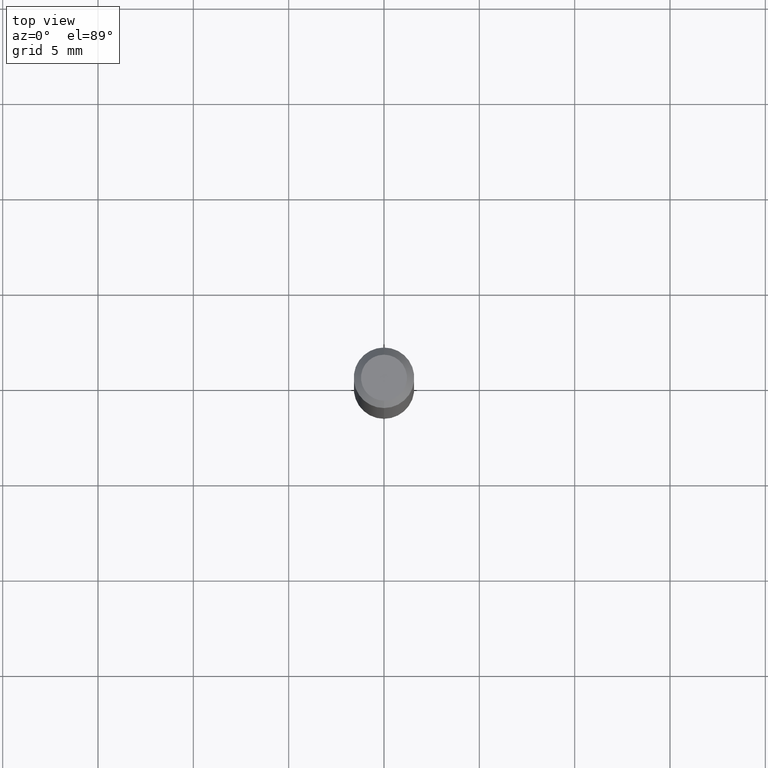
[diagram: clean part render]
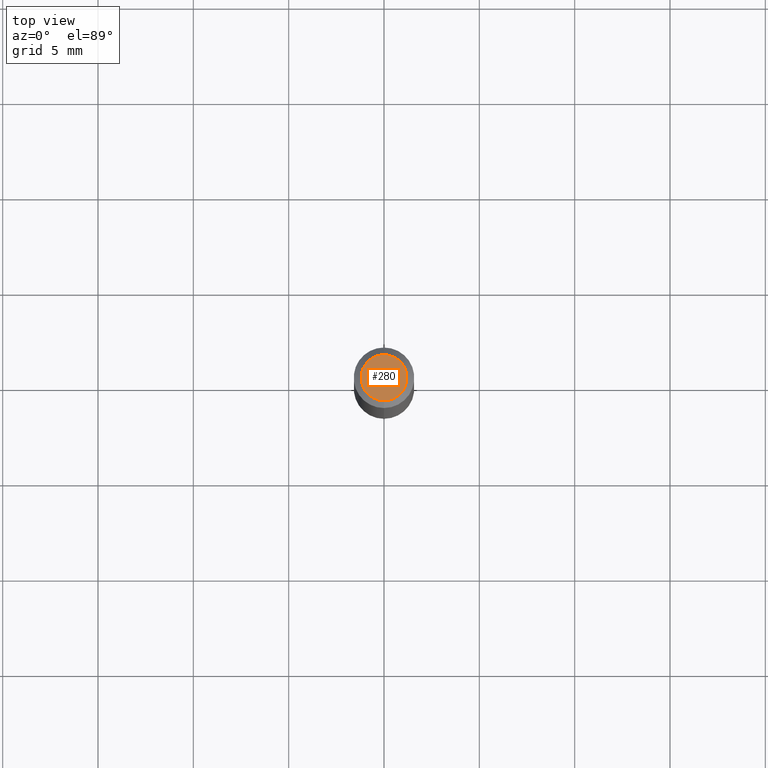
[diagram: same view with one face highlighted and labeled with its STEP entity id]
A machine part, top view. The second image highlights one B-rep face of the part: STEP entity #280.
In plain terms, the highlighted planar face has unit normal (0, -0, -1).
Its self-contained STEP definition (entity closure, byte-faithful):
#26 = CARTESIAN_POINT ( 'NONE',  ( 1.601803669959520186E-45, -2.286938290152406368E-31, -6.550069990919144939E-17 ) ) ;
#28 = ORIENTED_EDGE ( 'NONE', *, *, #148, .T. ) ;
#29 = DIRECTION ( 'NONE',  ( -6.982962677686266711E-15, -1.000000000000000000, 3.491471531331667056E-15 ) ) ;
#54 = DIRECTION ( 'NONE',  ( -2.445475654733798440E-29, 3.491471531331666661E-15, 1.000000000000000000 ) ) ;
#66 = CIRCLE ( 'NONE', #200, 0.04749999999999999362 ) ;
#92 = EDGE_LOOP ( 'NONE', ( #28, #101 ) ) ;
#97 = DIRECTION ( 'NONE',  ( -6.982962677686266711E-15, -1.000000000000000000, 3.491471531331667056E-15 ) ) ;
#101 = ORIENTED_EDGE ( 'NONE', *, *, #462, .T. ) ;
#108 = VERTEX_POINT ( 'NONE', #135 ) ;
#135 = CARTESIAN_POINT ( 'NONE',  ( 3.840629472727447874E-16, 0.04749999999999999362, -2.313455976474456035E-16 ) ) ;
#148 = EDGE_CURVE ( 'NONE', #108, #220, #66, .T. ) ;
#156 = CARTESIAN_POINT ( 'NONE',  ( -3.773273898774340269E-16, -0.04749999999999999362, 1.003441978290627047E-16 ) ) ;
#159 = DIRECTION ( 'NONE',  ( 2.445475654733798160E-29, -3.491471531331666661E-15, -1.000000000000000000 ) ) ;
#180 = CIRCLE ( 'NONE', #350, 0.04749999999999999362 ) ;
#188 = AXIS2_PLACEMENT_3D ( 'NONE', #321, #159, #245 ) ;
#200 = AXIS2_PLACEMENT_3D ( 'NONE', #26, #383, #29 ) ;
#220 = VERTEX_POINT ( 'NONE', #156 ) ;
#245 = DIRECTION ( 'NONE',  ( 6.982962677686265922E-15, 1.000000000000000000, -3.491471531331666661E-15 ) ) ;
#280 = ADVANCED_FACE ( 'NONE', ( #317 ), #474, .F. ) ;
#293 = CARTESIAN_POINT ( 'NONE',  ( 1.601803669959520186E-45, -2.286938290152406368E-31, -6.550069990919144939E-17 ) ) ;
#317 = FACE_OUTER_BOUND ( 'NONE', #92, .T. ) ;
#321 = CARTESIAN_POINT ( 'NONE',  ( 3.316907271900976096E-16, 0.04749999999999999362, -1.985952476928498726E-16 ) ) ;
#350 = AXIS2_PLACEMENT_3D ( 'NONE', #293, #54, #97 ) ;
#383 = DIRECTION ( 'NONE',  ( -2.445475654733798440E-29, 3.491471531331666661E-15, 1.000000000000000000 ) ) ;
#462 = EDGE_CURVE ( 'NONE', #220, #108, #180, .T. ) ;
#474 = PLANE ( 'NONE',  #188 ) ;